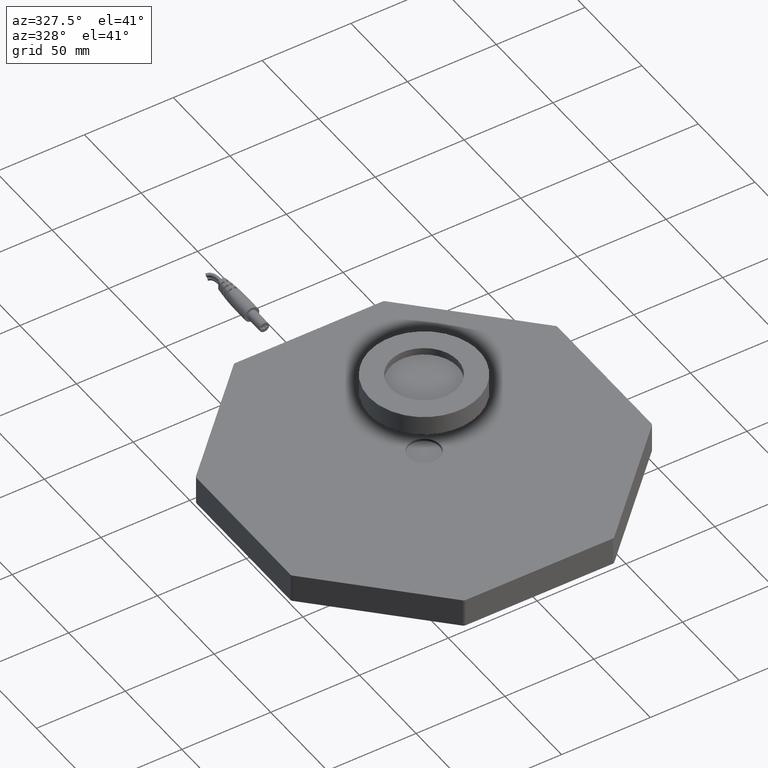
[diagram: clean part render]
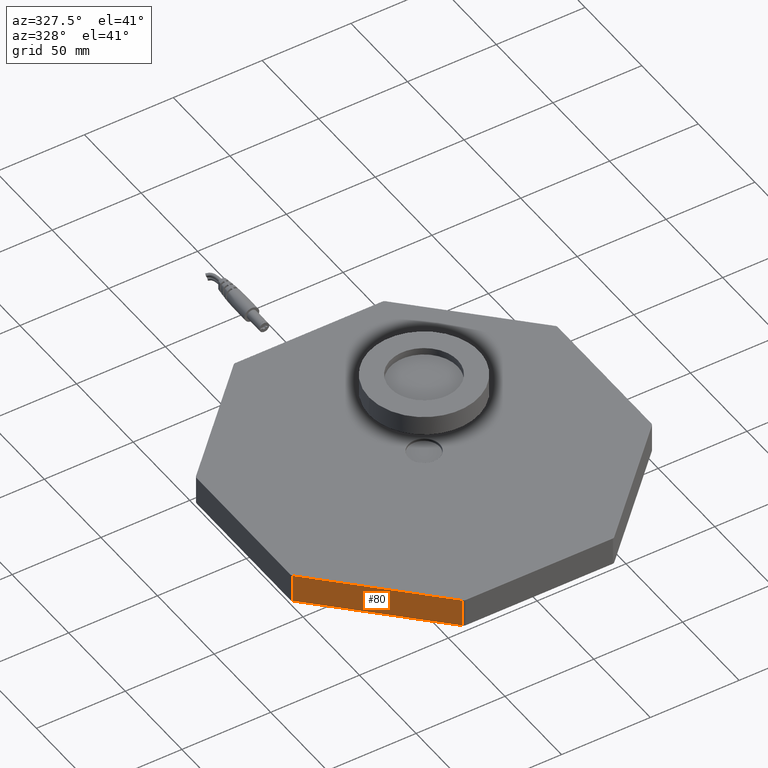
[diagram: same view with one face highlighted and labeled with its STEP entity id]
A machine part, auxiliary view. The second image highlights one B-rep face of the part: STEP entity #80.
In plain terms, the highlighted planar face has unit normal (-0.7071, -0.7071, -0).
Its self-contained STEP definition (entity closure, byte-faithful):
#80=ADVANCED_FACE('',(#232),#2101,.T.);
#232=FACE_OUTER_BOUND('',#376,.T.);
#376=EDGE_LOOP('',(#632,#633,#634,#635));
#632=ORIENTED_EDGE('',*,*,#1255,.T.);
#633=ORIENTED_EDGE('',*,*,#1216,.F.);
#634=ORIENTED_EDGE('',*,*,#1257,.F.);
#635=ORIENTED_EDGE('',*,*,#1256,.F.);
#1216=EDGE_CURVE('',#1869,#1870,#1528,.T.);
#1255=EDGE_CURVE('',#1913,#1870,#1567,.T.);
#1256=EDGE_CURVE('',#1913,#1914,#1568,.T.);
#1257=EDGE_CURVE('',#1914,#1869,#1569,.T.);
#1528=B_SPLINE_CURVE_WITH_KNOTS('',1,(#3496,#3497),.UNSPECIFIED.,.F.,.F.,
(2,2),(-83.4226114619414,-0.828427124746209),.UNSPECIFIED.);
#1567=B_SPLINE_CURVE_WITH_KNOTS('',1,(#3606,#3607),.UNSPECIFIED.,.F.,.F.,
(2,2),(-15.7999995949863,0.),.UNSPECIFIED.);
#1568=B_SPLINE_CURVE_WITH_KNOTS('',1,(#3608,#3609),.UNSPECIFIED.,.F.,.F.,
(2,2),(0.,82.5941843371951),.UNSPECIFIED.);
#1569=B_SPLINE_CURVE_WITH_KNOTS('',1,(#3610,#3611),.UNSPECIFIED.,.F.,.F.,
(2,2),(-15.7999995949863,0.),.UNSPECIFIED.);
#1869=VERTEX_POINT('',#3197);
#1870=VERTEX_POINT('',#3198);
#1913=VERTEX_POINT('',#3241);
#1914=VERTEX_POINT('',#3242);
#2101=PLANE('',#2180);
#2180=AXIS2_PLACEMENT_3D('',#2679,#2243,$);
#2243=DIRECTION('',(-0.707106781186547,-0.707106781186548,-3.14018491736755E-16));
#2679=CARTESIAN_POINT('',(-42.7113057309707,-101.114213562373,0.));
#3197=CARTESIAN_POINT('',(-42.7113057309707,-101.114213562373,0.));
#3198=CARTESIAN_POINT('',(-101.114213562373,-42.7113057309707,0.));
#3241=CARTESIAN_POINT('',(-101.114213562373,-42.7113057309707,15.7999995949863));
#3242=CARTESIAN_POINT('',(-42.7113057309707,-101.114213562373,15.7999995949863));
#3496=CARTESIAN_POINT('',(-42.7113057309707,-101.114213562373,0.));
#3497=CARTESIAN_POINT('',(-101.114213562373,-42.7113057309707,0.));
#3606=CARTESIAN_POINT('',(-101.114213562373,-42.7113057309707,15.7999995949863));
#3607=CARTESIAN_POINT('',(-101.114213562373,-42.7113057309707,0.));
#3608=CARTESIAN_POINT('',(-101.114213562373,-42.7113057309707,15.7999995949863));
#3609=CARTESIAN_POINT('',(-42.7113057309707,-101.114213562373,15.7999995949863));
#3610=CARTESIAN_POINT('',(-42.7113057309707,-101.114213562373,15.7999995949863));
#3611=CARTESIAN_POINT('',(-42.7113057309707,-101.114213562373,0.));